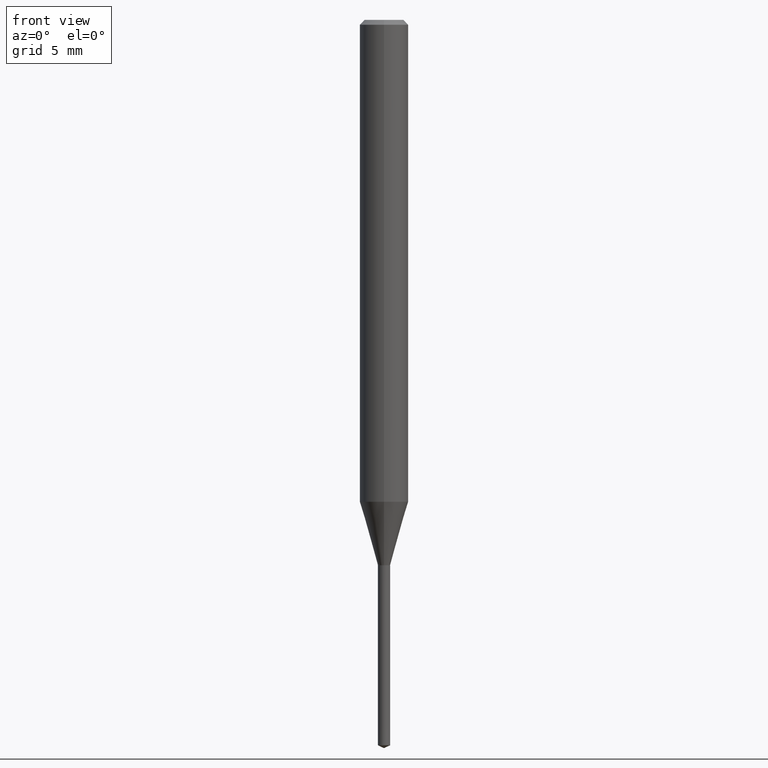
[diagram: clean part render]
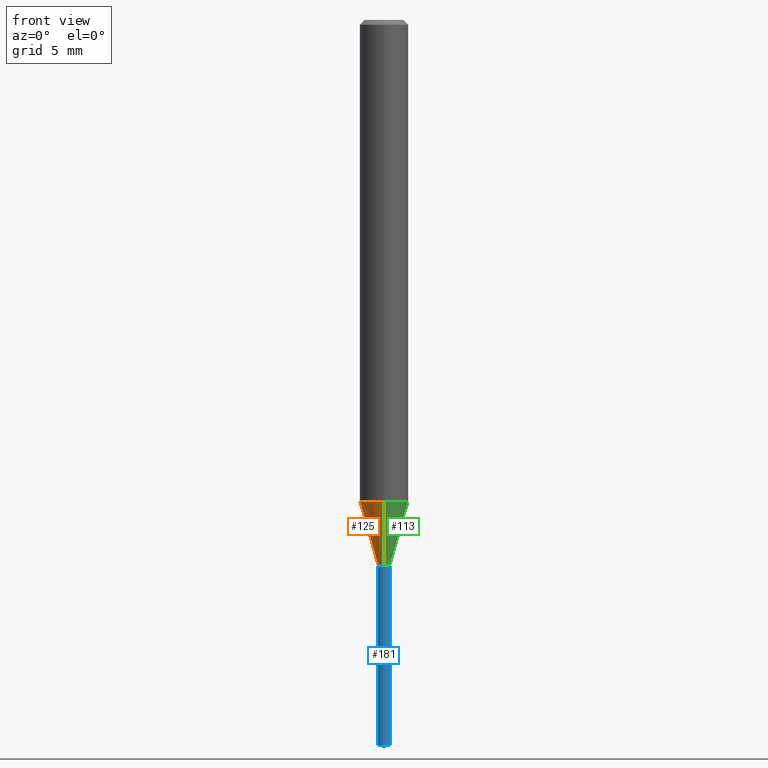
[diagram: same view with three faces highlighted in distinct colors, each labeled with its STEP entity id]
A machine part, front view with three faces highlighted in distinct colors.
Their STEP definitions:

[orange] entity #125 — the highlighted conical surface has half-angle 16.005 deg.
#107=VERTEX_POINT('',#244);
#125=ADVANCED_FACE('',(#264),#265,.T.);
#131=EDGE_CURVE('',#183,#137,#271,.T.);
#137=VERTEX_POINT('',#277);
#151=EDGE_CURVE('',#197,#107,#295,.T.);
#157=EDGE_CURVE('',#197,#183,#302,.T.);
#183=VERTEX_POINT('',#331);
#197=VERTEX_POINT('',#346);
#199=EDGE_CURVE('',#137,#107,#348,.T.);
#244=CARTESIAN_POINT('',(0.0,0.375,-33.6991339745962));
#264=FACE_OUTER_BOUND('',#414,.T.);
#265=CONICAL_SURFACE('',#415,0.9375,0.279334235816107);
#271=CIRCLE('',#422,1.5);
#277=CARTESIAN_POINT('',(0.0,1.5,-29.777));
#295=CIRCLE('',#451,0.375);
#302=LINE('',#461,#462);
#331=CARTESIAN_POINT('',(1.83690953073357E-016,-1.5,-29.777));
#346=CARTESIAN_POINT('',(4.59227382683391E-017,-0.375,-33.6991339745962));
#348=LINE('',#523,#524);
#414=EDGE_LOOP('',(#583,#584,#585,#586));
#415=AXIS2_PLACEMENT_3D('',#587,#588,#589);
#422=AXIS2_PLACEMENT_3D('',#590,#591,#592);
#451=AXIS2_PLACEMENT_3D('',#624,#625,#626);
#461=CARTESIAN_POINT('',(1.14806845670848E-016,-0.9375,-31.7380669872981));
#462=VECTOR('',#635,1.0);
#523=CARTESIAN_POINT('',(-1.14806845670848E-016,0.9375,-31.7380669872981));
#524=VECTOR('',#690,1.0);
#583=ORIENTED_EDGE('',*,*,#199,.T.);
#584=ORIENTED_EDGE('',*,*,#151,.F.);
#585=ORIENTED_EDGE('',*,*,#157,.T.);
#586=ORIENTED_EDGE('',*,*,#131,.T.);
#587=CARTESIAN_POINT('',(0.0,0.0,-31.7380669872981));
#588=DIRECTION('',(-0.0,-0.0,1.0));
#589=DIRECTION('',(0.0,1.0,0.0));
#590=CARTESIAN_POINT('',(0.0,0.0,-29.777));
#591=DIRECTION('',(0.0,0.0,-1.0));
#592=DIRECTION('',(0.0,1.0,0.0));
#624=CARTESIAN_POINT('',(0.0,0.0,-33.6991339745962));
#625=DIRECTION('',(0.0,0.0,-1.0));
#626=DIRECTION('',(0.0,1.0,0.0));
#635=DIRECTION('',(3.37643260616104E-017,-0.275715751075612,0.961239212999975));
#690=DIRECTION('',(3.37643260616104E-017,-0.275715751075612,-0.961239212999975));

[blue] entity #181 — the highlighted conical surface has half-angle 0.005 deg.
#103=EDGE_CURVE('',#143,#121,#239,.T.);
#117=EDGE_CURVE('',#143,#119,#256,.T.);
#119=VERTEX_POINT('',#258);
#121=VERTEX_POINT('',#260);
#143=VERTEX_POINT('',#285);
#145=VERTEX_POINT('',#287);
#165=EDGE_CURVE('',#145,#121,#310,.T.);
#181=ADVANCED_FACE('',(#328),#329,.T.);
#195=EDGE_CURVE('',#119,#145,#344,.T.);
#239=CIRCLE('',#385,0.375);
#256=LINE('',#404,#405);
#258=CARTESIAN_POINT('',(0.376,4.60451989037214E-017,-33.7));
#260=CARTESIAN_POINT('',(-0.375,0.0,-44.82513463));
#285=CARTESIAN_POINT('',(0.375,4.59227382683391E-017,-44.82513463));
#287=CARTESIAN_POINT('',(-0.376,0.0,-33.7));
#310=LINE('',#475,#476);
#328=FACE_OUTER_BOUND('',#499,.T.);
#329=CONICAL_SURFACE('',#500,0.3755,8.9886552438674E-005);
#344=CIRCLE('',#518,0.376);
#385=AXIS2_PLACEMENT_3D('',#551,#552,#553);
#404=CARTESIAN_POINT('',(0.3755,4.59839685860303E-017,-39.262567315));
#405=VECTOR('',#578,1.0);
#475=CARTESIAN_POINT('',(-0.3755,-4.59839685860303E-017,-39.262567315));
#476=VECTOR('',#643,1.0);
#499=EDGE_LOOP('',(#671,#672,#673,#674));
#500=AXIS2_PLACEMENT_3D('',#675,#676,#677);
#518=AXIS2_PLACEMENT_3D('',#687,#688,#689);
#551=CARTESIAN_POINT('',(0.0,0.0,-44.82513463));
#552=DIRECTION('',(0.0,0.0,-1.0));
#553=DIRECTION('',(-1.0,0.0,0.0));
#578=DIRECTION('',(8.98865523176329E-005,1.10075643091361E-020,0.999999995960204));
#643=DIRECTION('',(8.98865523176329E-005,1.10075643091361E-020,-0.999999995960204));
#671=ORIENTED_EDGE('',*,*,#165,.T.);
#672=ORIENTED_EDGE('',*,*,#103,.F.);
#673=ORIENTED_EDGE('',*,*,#117,.T.);
#674=ORIENTED_EDGE('',*,*,#195,.T.);
#675=CARTESIAN_POINT('',(0.0,0.0,-39.262567315));
#676=DIRECTION('',(-0.0,-0.0,1.0));
#677=DIRECTION('',(-1.0,0.0,0.0));
#687=CARTESIAN_POINT('',(0.0,0.0,-33.7));
#688=DIRECTION('',(0.0,0.0,-1.0));
#689=DIRECTION('',(-1.0,0.0,0.0));

[green] entity #113 — the highlighted conical surface has half-angle 16.005 deg.
#95=EDGE_CURVE('',#107,#197,#230,.T.);
#107=VERTEX_POINT('',#244);
#113=ADVANCED_FACE('',(#251),#252,.T.);
#137=VERTEX_POINT('',#277);
#157=EDGE_CURVE('',#197,#183,#302,.T.);
#179=EDGE_CURVE('',#137,#183,#326,.T.);
#183=VERTEX_POINT('',#331);
#197=VERTEX_POINT('',#346);
#199=EDGE_CURVE('',#137,#107,#348,.T.);
#230=CIRCLE('',#372,0.375);
#244=CARTESIAN_POINT('',(0.0,0.375,-33.6991339745962));
#251=FACE_OUTER_BOUND('',#396,.T.);
#252=CONICAL_SURFACE('',#397,0.9375,0.279334235816107);
#277=CARTESIAN_POINT('',(0.0,1.5,-29.777));
#302=LINE('',#461,#462);
#326=CIRCLE('',#497,1.5);
#331=CARTESIAN_POINT('',(1.83690953073357E-016,-1.5,-29.777));
#346=CARTESIAN_POINT('',(4.59227382683391E-017,-0.375,-33.6991339745962));
#348=LINE('',#523,#524);
#372=AXIS2_PLACEMENT_3D('',#536,#537,#538);
#396=EDGE_LOOP('',(#570,#571,#572,#573));
#397=AXIS2_PLACEMENT_3D('',#574,#575,#576);
#461=CARTESIAN_POINT('',(1.14806845670848E-016,-0.9375,-31.7380669872981));
#462=VECTOR('',#635,1.0);
#497=AXIS2_PLACEMENT_3D('',#667,#668,#669);
#523=CARTESIAN_POINT('',(-1.14806845670848E-016,0.9375,-31.7380669872981));
#524=VECTOR('',#690,1.0);
#536=CARTESIAN_POINT('',(0.0,0.0,-33.6991339745962));
#537=DIRECTION('',(0.0,0.0,-1.0));
#538=DIRECTION('',(0.0,1.0,0.0));
#570=ORIENTED_EDGE('',*,*,#199,.F.);
#571=ORIENTED_EDGE('',*,*,#179,.T.);
#572=ORIENTED_EDGE('',*,*,#157,.F.);
#573=ORIENTED_EDGE('',*,*,#95,.F.);
#574=CARTESIAN_POINT('',(0.0,0.0,-31.7380669872981));
#575=DIRECTION('',(-0.0,-0.0,1.0));
#576=DIRECTION('',(0.0,1.0,0.0));
#635=DIRECTION('',(3.37643260616104E-017,-0.275715751075612,0.961239212999975));
#667=CARTESIAN_POINT('',(0.0,0.0,-29.777));
#668=DIRECTION('',(0.0,0.0,-1.0));
#669=DIRECTION('',(0.0,1.0,0.0));
#690=DIRECTION('',(3.37643260616104E-017,-0.275715751075612,-0.961239212999975));